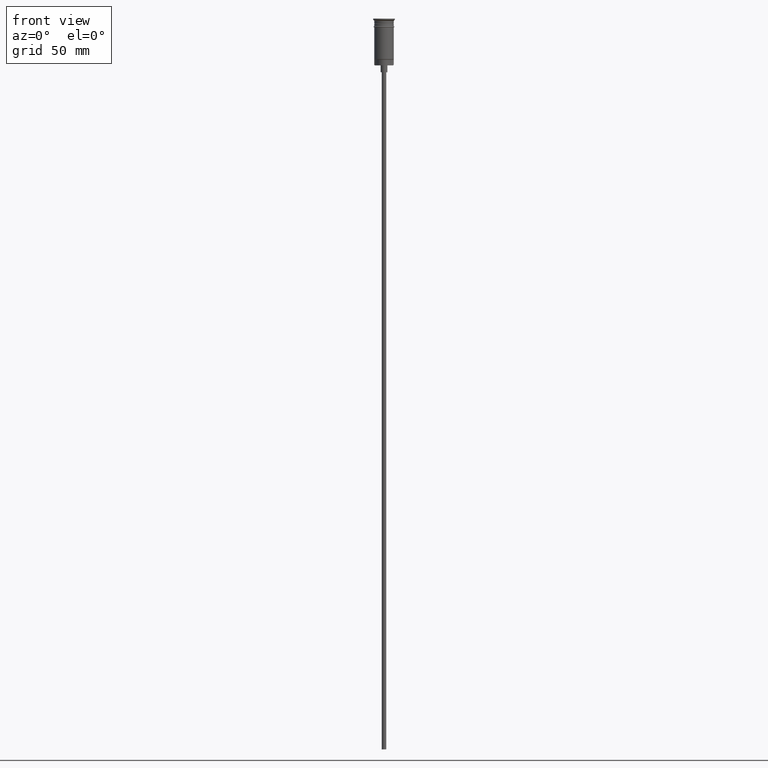
[diagram: clean part render]
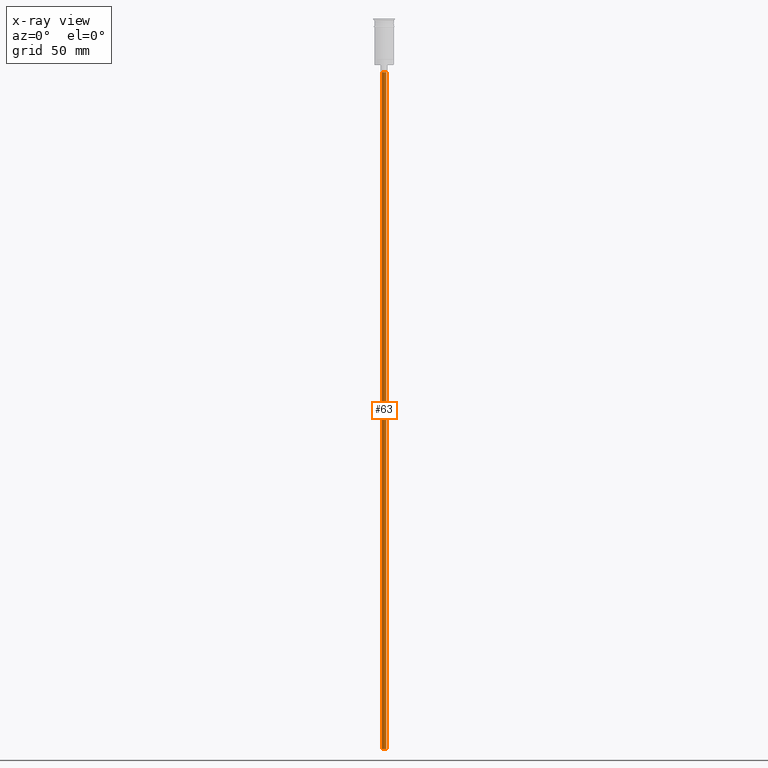
[diagram: x-ray — body ghosted, one internal face saturated and labeled with its STEP entity id]
A machine part, front view, then the same camera in x-ray: the body is ghosted and one INTERNAL B-rep face — a face not visible from any outside direction — is saturated and labeled: STEP entity #63.
In plain terms, the highlighted cylindrical surface (edge-blend (fillet) strip) has radius 1 mm, axis along (-0, -0, 1).
Its self-contained STEP definition (entity closure, byte-faithful):
#5 = EDGE_CURVE ( 'NONE', #844, #12, #572, .T. ) ;
#12 = VERTEX_POINT ( 'NONE', #114 ) ;
#63 = ADVANCED_FACE ( 'NONE', ( #330 ), #470, .T. ) ;
#109 = DIRECTION ( 'NONE',  ( 0.000000000000000000, 0.000000000000000000, -1.000000000000000000 ) ) ;
#114 = CARTESIAN_POINT ( 'NONE',  ( -0.9999999999999997780, 1.224646799147352961E-16, -23.49999999999999645 ) ) ;
#141 = DIRECTION ( 'NONE',  ( -0.000000000000000000, -0.000000000000000000, 1.000000000000000000 ) ) ;
#205 = DIRECTION ( 'NONE',  ( -0.000000000000000000, -0.000000000000000000, 1.000000000000000000 ) ) ;
#231 = AXIS2_PLACEMENT_3D ( 'NONE', #848, #109, #830 ) ;
#262 = DIRECTION ( 'NONE',  ( -1.000000000000000000, 0.000000000000000000, 0.000000000000000000 ) ) ;
#264 = LINE ( 'NONE', #1253, #1271 ) ;
#325 = VERTEX_POINT ( 'NONE', #822 ) ;
#330 = FACE_OUTER_BOUND ( 'NONE', #1429, .T. ) ;
#385 = VECTOR ( 'NONE', #817, 1000.000000000000000 ) ;
#470 = CYLINDRICAL_SURFACE ( 'NONE', #1194, 0.9999999999999997780 ) ;
#492 = CARTESIAN_POINT ( 'NONE',  ( 0.000000000000000000, 0.000000000000000000, -320.5000000000000000 ) ) ;
#572 = CIRCLE ( 'NONE', #231, 0.9999999999999997780 ) ;
#592 = ORIENTED_EDGE ( 'NONE', *, *, #1256, .F. ) ;
#804 = CARTESIAN_POINT ( 'NONE',  ( -0.9999999999999997780, 1.224646799147352961E-16, -320.5000000000000000 ) ) ;
#817 = DIRECTION ( 'NONE',  ( -0.000000000000000000, -0.000000000000000000, 1.000000000000000000 ) ) ;
#822 = CARTESIAN_POINT ( 'NONE',  ( 0.9999999999999997780, 0.000000000000000000, -320.5000000000000000 ) ) ;
#830 = DIRECTION ( 'NONE',  ( -1.000000000000000000, 0.000000000000000000, 0.000000000000000000 ) ) ;
#844 = VERTEX_POINT ( 'NONE', #845 ) ;
#845 = CARTESIAN_POINT ( 'NONE',  ( 0.9999999999999997780, 0.000000000000000000, -23.49999999999999645 ) ) ;
#848 = CARTESIAN_POINT ( 'NONE',  ( 0.000000000000000000, 0.000000000000000000, -23.49999999999999645 ) ) ;
#885 = CIRCLE ( 'NONE', #918, 0.9999999999999997780 ) ;
#918 = AXIS2_PLACEMENT_3D ( 'NONE', #492, #1022, #262 ) ;
#934 = EDGE_CURVE ( 'NONE', #325, #844, #264, .T. ) ;
#971 = DIRECTION ( 'NONE',  ( 1.000000000000000000, 0.000000000000000000, 0.000000000000000000 ) ) ;
#1012 = EDGE_CURVE ( 'NONE', #1425, #12, #1420, .T. ) ;
#1020 = ORIENTED_EDGE ( 'NONE', *, *, #5, .T. ) ;
#1022 = DIRECTION ( 'NONE',  ( 0.000000000000000000, 0.000000000000000000, -1.000000000000000000 ) ) ;
#1181 = ORIENTED_EDGE ( 'NONE', *, *, #1012, .F. ) ;
#1194 = AXIS2_PLACEMENT_3D ( 'NONE', #1462, #205, #971 ) ;
#1249 = ORIENTED_EDGE ( 'NONE', *, *, #934, .T. ) ;
#1253 = CARTESIAN_POINT ( 'NONE',  ( 0.9999999999999997780, 0.000000000000000000, -320.5000000000000000 ) ) ;
#1256 = EDGE_CURVE ( 'NONE', #325, #1425, #885, .T. ) ;
#1271 = VECTOR ( 'NONE', #141, 1000.000000000000000 ) ;
#1318 = CARTESIAN_POINT ( 'NONE',  ( -0.9999999999999997780, 1.224646799147352961E-16, -320.5000000000000000 ) ) ;
#1420 = LINE ( 'NONE', #804, #385 ) ;
#1425 = VERTEX_POINT ( 'NONE', #1318 ) ;
#1429 = EDGE_LOOP ( 'NONE', ( #1181, #592, #1249, #1020 ) ) ;
#1462 = CARTESIAN_POINT ( 'NONE',  ( 0.000000000000000000, 0.000000000000000000, -320.5000000000000000 ) ) ;